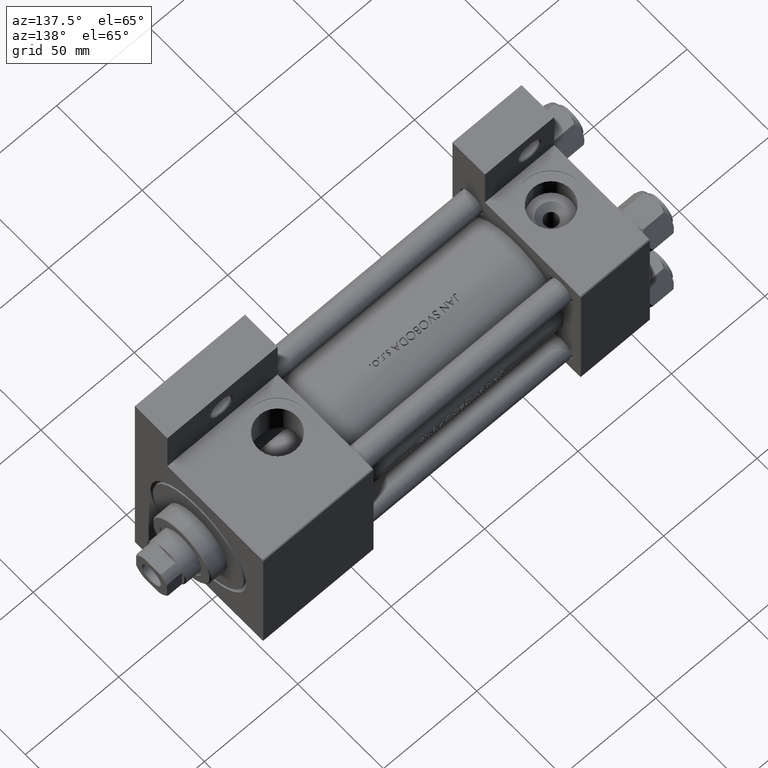
[diagram: clean part render]
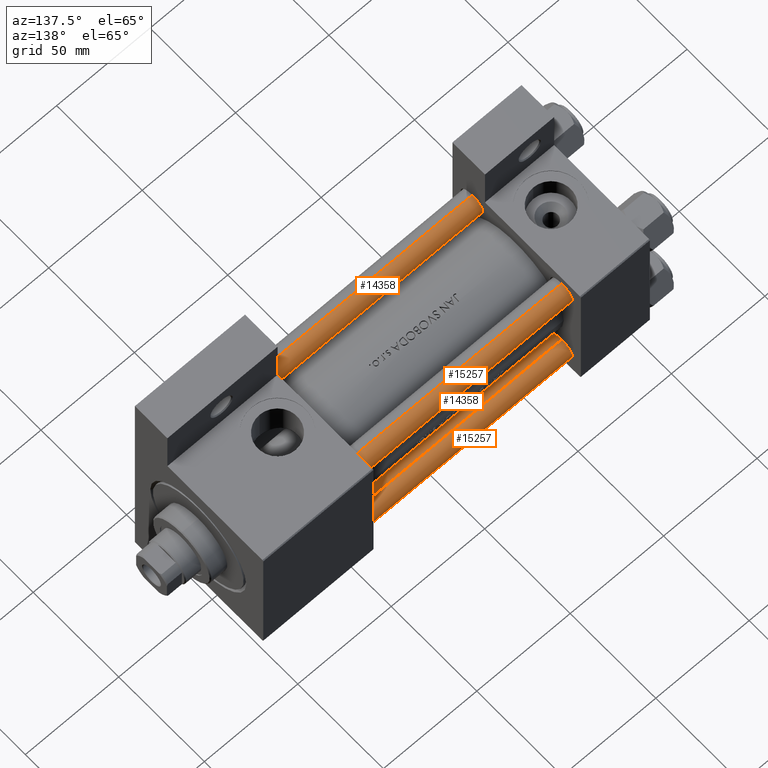
[diagram: same view with one multi-face feature highlighted, each face labeled with its STEP entity id]
A machine part, auxiliary view. The highlighted faces form ONE feature: a constant-radius fillet chain: 4 tangent blend faces with common blend radius 6 mm. The faces share edges in the B-rep.
Their STEP definitions:
[1] entity #15257 (Cylinder):
#157 = ORIENTED_EDGE ( 'NONE', *, *, #37137, .T. ) ;
#1716 = CARTESIAN_POINT ( 'NONE',  ( -6.000000000000000888, 0.000000000000000000, 0.5000000000000281997 ) ) ;
#2989 = CYLINDRICAL_SURFACE ( 'NONE', #7950, 6.000000000000000888 ) ;
#3058 = LINE ( 'NONE', #32703, #32353 ) ;
#4054 = CARTESIAN_POINT ( 'NONE',  ( -6.000000000000000888, 0.000000000000000000, 176.4999999999999716 ) ) ;
#6323 = EDGE_CURVE ( 'NONE', #13039, #16869, #3058, .T. ) ;
#7950 = AXIS2_PLACEMENT_3D ( 'NONE', #41817, #18891, #34100 ) ;
#10630 = CARTESIAN_POINT ( 'NONE',  ( 6.000000000000000888, 7.347880794884120722E-16, 176.4999999999999716 ) ) ;
#13039 = VERTEX_POINT ( 'NONE', #4054 ) ;
#14678 = DIRECTION ( 'NONE',  ( -0.000000000000000000, -0.000000000000000000, 1.000000000000000000 ) ) ;
#14924 = CARTESIAN_POINT ( 'NONE',  ( 0.000000000000000000, 0.000000000000000000, 0.5000000000000281997 ) ) ;
#15257 = ADVANCED_FACE ( 'NONE', ( #48800 ), #2989, .T. ) ;
#16025 = ORIENTED_EDGE ( 'NONE', *, *, #46420, .T. ) ;
#16869 = VERTEX_POINT ( 'NONE', #1716 ) ;
#17174 = AXIS2_PLACEMENT_3D ( 'NONE', #41259, #42236, #26570 ) ;
#18051 = VERTEX_POINT ( 'NONE', #48690 ) ;
#18891 = DIRECTION ( 'NONE',  ( -0.000000000000000000, -0.000000000000000000, -1.000000000000000000 ) ) ;
#22461 = DIRECTION ( 'NONE',  ( -0.000000000000000000, -0.000000000000000000, -1.000000000000000000 ) ) ;
#22553 = CIRCLE ( 'NONE', #47245, 6.000000000000000888 ) ;
#26570 = DIRECTION ( 'NONE',  ( 1.000000000000000000, 0.000000000000000000, 0.000000000000000000 ) ) ;
#28325 = CIRCLE ( 'NONE', #17174, 6.000000000000000888 ) ;
#28451 = ORIENTED_EDGE ( 'NONE', *, *, #6323, .F. ) ;
#30511 = VERTEX_POINT ( 'NONE', #10630 ) ;
#31710 = EDGE_CURVE ( 'NONE', #30511, #18051, #46994, .T. ) ;
#31807 = EDGE_LOOP ( 'NONE', ( #16025, #42505, #157, #28451 ) ) ;
#32353 = VECTOR ( 'NONE', #22461, 1000.000000000000000 ) ;
#32703 = CARTESIAN_POINT ( 'NONE',  ( -6.000000000000000888, 0.000000000000000000, 177.0000000000000000 ) ) ;
#34100 = DIRECTION ( 'NONE',  ( -1.000000000000000000, 0.000000000000000000, 0.000000000000000000 ) ) ;
#36009 = DIRECTION ( 'NONE',  ( -0.000000000000000000, -0.000000000000000000, -1.000000000000000000 ) ) ;
#37137 = EDGE_CURVE ( 'NONE', #18051, #16869, #22553, .T. ) ;
#40484 = CARTESIAN_POINT ( 'NONE',  ( 6.000000000000000888, 7.347880794884120722E-16, 177.0000000000000000 ) ) ;
#41259 = CARTESIAN_POINT ( 'NONE',  ( 0.000000000000000000, 0.000000000000000000, 176.4999999999999716 ) ) ;
#41471 = VECTOR ( 'NONE', #36009, 1000.000000000000000 ) ;
#41575 = DIRECTION ( 'NONE',  ( 1.000000000000000000, 0.000000000000000000, 0.000000000000000000 ) ) ;
#41817 = CARTESIAN_POINT ( 'NONE',  ( 0.000000000000000000, 0.000000000000000000, 177.0000000000000000 ) ) ;
#42236 = DIRECTION ( 'NONE',  ( 0.000000000000000000, 0.000000000000000000, -1.000000000000000000 ) ) ;
#42505 = ORIENTED_EDGE ( 'NONE', *, *, #31710, .T. ) ;
#46420 = EDGE_CURVE ( 'NONE', #13039, #30511, #28325, .T. ) ;
#46994 = LINE ( 'NONE', #40484, #41471 ) ;
#47245 = AXIS2_PLACEMENT_3D ( 'NONE', #14924, #14678, #41575 ) ;
#48690 = CARTESIAN_POINT ( 'NONE',  ( 6.000000000000000888, 7.347880794884120722E-16, 0.5000000000000281997 ) ) ;
#48800 = FACE_OUTER_BOUND ( 'NONE', #31807, .T. ) ;
[2] entity #14358 (Cylinder):
#1400 = DIRECTION ( 'NONE',  ( 0.000000000000000000, 0.000000000000000000, -1.000000000000000000 ) ) ;
#1716 = CARTESIAN_POINT ( 'NONE',  ( -6.000000000000000888, 0.000000000000000000, 0.5000000000000281997 ) ) ;
#2612 = CARTESIAN_POINT ( 'NONE',  ( 0.000000000000000000, 0.000000000000000000, 0.5000000000000281997 ) ) ;
#3058 = LINE ( 'NONE', #32703, #32353 ) ;
#3463 = CARTESIAN_POINT ( 'NONE',  ( 0.000000000000000000, 0.000000000000000000, 177.0000000000000000 ) ) ;
#4054 = CARTESIAN_POINT ( 'NONE',  ( -6.000000000000000888, 0.000000000000000000, 176.4999999999999716 ) ) ;
#5837 = ORIENTED_EDGE ( 'NONE', *, *, #45654, .T. ) ;
#5859 = DIRECTION ( 'NONE',  ( -0.000000000000000000, -0.000000000000000000, 1.000000000000000000 ) ) ;
#6323 = EDGE_CURVE ( 'NONE', #13039, #16869, #3058, .T. ) ;
#6814 = EDGE_LOOP ( 'NONE', ( #13808, #23297, #24288, #5837 ) ) ;
#7694 = DIRECTION ( 'NONE',  ( -0.000000000000000000, -0.000000000000000000, -1.000000000000000000 ) ) ;
#10630 = CARTESIAN_POINT ( 'NONE',  ( 6.000000000000000888, 7.347880794884120722E-16, 176.4999999999999716 ) ) ;
#10992 = EDGE_CURVE ( 'NONE', #30511, #13039, #34856, .T. ) ;
#13039 = VERTEX_POINT ( 'NONE', #4054 ) ;
#13795 = DIRECTION ( 'NONE',  ( 1.000000000000000000, 0.000000000000000000, 0.000000000000000000 ) ) ;
#13808 = ORIENTED_EDGE ( 'NONE', *, *, #31710, .F. ) ;
#14358 = ADVANCED_FACE ( 'NONE', ( #41806 ), #18882, .T. ) ;
#16350 = AXIS2_PLACEMENT_3D ( 'NONE', #2612, #5859, #13795 ) ;
#16869 = VERTEX_POINT ( 'NONE', #1716 ) ;
#18051 = VERTEX_POINT ( 'NONE', #48690 ) ;
#18882 = CYLINDRICAL_SURFACE ( 'NONE', #35741, 6.000000000000000888 ) ;
#19805 = CARTESIAN_POINT ( 'NONE',  ( 0.000000000000000000, 0.000000000000000000, 176.4999999999999716 ) ) ;
#22461 = DIRECTION ( 'NONE',  ( -0.000000000000000000, -0.000000000000000000, -1.000000000000000000 ) ) ;
#23297 = ORIENTED_EDGE ( 'NONE', *, *, #10992, .T. ) ;
#24288 = ORIENTED_EDGE ( 'NONE', *, *, #6323, .T. ) ;
#30511 = VERTEX_POINT ( 'NONE', #10630 ) ;
#31710 = EDGE_CURVE ( 'NONE', #30511, #18051, #46994, .T. ) ;
#32353 = VECTOR ( 'NONE', #22461, 1000.000000000000000 ) ;
#32703 = CARTESIAN_POINT ( 'NONE',  ( -6.000000000000000888, 0.000000000000000000, 177.0000000000000000 ) ) ;
#34856 = CIRCLE ( 'NONE', #40409, 6.000000000000000888 ) ;
#35741 = AXIS2_PLACEMENT_3D ( 'NONE', #3463, #7694, #48789 ) ;
#36009 = DIRECTION ( 'NONE',  ( -0.000000000000000000, -0.000000000000000000, -1.000000000000000000 ) ) ;
#38732 = DIRECTION ( 'NONE',  ( 1.000000000000000000, 0.000000000000000000, 0.000000000000000000 ) ) ;
#39422 = CIRCLE ( 'NONE', #16350, 6.000000000000000888 ) ;
#40409 = AXIS2_PLACEMENT_3D ( 'NONE', #19805, #1400, #38732 ) ;
#40484 = CARTESIAN_POINT ( 'NONE',  ( 6.000000000000000888, 7.347880794884120722E-16, 177.0000000000000000 ) ) ;
#41471 = VECTOR ( 'NONE', #36009, 1000.000000000000000 ) ;
#41806 = FACE_OUTER_BOUND ( 'NONE', #6814, .T. ) ;
#45654 = EDGE_CURVE ( 'NONE', #16869, #18051, #39422, .T. ) ;
#46994 = LINE ( 'NONE', #40484, #41471 ) ;
#48690 = CARTESIAN_POINT ( 'NONE',  ( 6.000000000000000888, 7.347880794884120722E-16, 0.5000000000000281997 ) ) ;
#48789 = DIRECTION ( 'NONE',  ( -1.000000000000000000, 0.000000000000000000, 0.000000000000000000 ) ) ;
[3] entity #15257 (Cylinder):
#157 = ORIENTED_EDGE ( 'NONE', *, *, #37137, .T. ) ;
#1716 = CARTESIAN_POINT ( 'NONE',  ( -6.000000000000000888, 0.000000000000000000, 0.5000000000000281997 ) ) ;
#2989 = CYLINDRICAL_SURFACE ( 'NONE', #7950, 6.000000000000000888 ) ;
#3058 = LINE ( 'NONE', #32703, #32353 ) ;
#4054 = CARTESIAN_POINT ( 'NONE',  ( -6.000000000000000888, 0.000000000000000000, 176.4999999999999716 ) ) ;
#6323 = EDGE_CURVE ( 'NONE', #13039, #16869, #3058, .T. ) ;
#7950 = AXIS2_PLACEMENT_3D ( 'NONE', #41817, #18891, #34100 ) ;
#10630 = CARTESIAN_POINT ( 'NONE',  ( 6.000000000000000888, 7.347880794884120722E-16, 176.4999999999999716 ) ) ;
#13039 = VERTEX_POINT ( 'NONE', #4054 ) ;
#14678 = DIRECTION ( 'NONE',  ( -0.000000000000000000, -0.000000000000000000, 1.000000000000000000 ) ) ;
#14924 = CARTESIAN_POINT ( 'NONE',  ( 0.000000000000000000, 0.000000000000000000, 0.5000000000000281997 ) ) ;
#15257 = ADVANCED_FACE ( 'NONE', ( #48800 ), #2989, .T. ) ;
#16025 = ORIENTED_EDGE ( 'NONE', *, *, #46420, .T. ) ;
#16869 = VERTEX_POINT ( 'NONE', #1716 ) ;
#17174 = AXIS2_PLACEMENT_3D ( 'NONE', #41259, #42236, #26570 ) ;
#18051 = VERTEX_POINT ( 'NONE', #48690 ) ;
#18891 = DIRECTION ( 'NONE',  ( -0.000000000000000000, -0.000000000000000000, -1.000000000000000000 ) ) ;
#22461 = DIRECTION ( 'NONE',  ( -0.000000000000000000, -0.000000000000000000, -1.000000000000000000 ) ) ;
#22553 = CIRCLE ( 'NONE', #47245, 6.000000000000000888 ) ;
#26570 = DIRECTION ( 'NONE',  ( 1.000000000000000000, 0.000000000000000000, 0.000000000000000000 ) ) ;
#28325 = CIRCLE ( 'NONE', #17174, 6.000000000000000888 ) ;
#28451 = ORIENTED_EDGE ( 'NONE', *, *, #6323, .F. ) ;
#30511 = VERTEX_POINT ( 'NONE', #10630 ) ;
#31710 = EDGE_CURVE ( 'NONE', #30511, #18051, #46994, .T. ) ;
#31807 = EDGE_LOOP ( 'NONE', ( #16025, #42505, #157, #28451 ) ) ;
#32353 = VECTOR ( 'NONE', #22461, 1000.000000000000000 ) ;
#32703 = CARTESIAN_POINT ( 'NONE',  ( -6.000000000000000888, 0.000000000000000000, 177.0000000000000000 ) ) ;
#34100 = DIRECTION ( 'NONE',  ( -1.000000000000000000, 0.000000000000000000, 0.000000000000000000 ) ) ;
#36009 = DIRECTION ( 'NONE',  ( -0.000000000000000000, -0.000000000000000000, -1.000000000000000000 ) ) ;
#37137 = EDGE_CURVE ( 'NONE', #18051, #16869, #22553, .T. ) ;
#40484 = CARTESIAN_POINT ( 'NONE',  ( 6.000000000000000888, 7.347880794884120722E-16, 177.0000000000000000 ) ) ;
#41259 = CARTESIAN_POINT ( 'NONE',  ( 0.000000000000000000, 0.000000000000000000, 176.4999999999999716 ) ) ;
#41471 = VECTOR ( 'NONE', #36009, 1000.000000000000000 ) ;
#41575 = DIRECTION ( 'NONE',  ( 1.000000000000000000, 0.000000000000000000, 0.000000000000000000 ) ) ;
#41817 = CARTESIAN_POINT ( 'NONE',  ( 0.000000000000000000, 0.000000000000000000, 177.0000000000000000 ) ) ;
#42236 = DIRECTION ( 'NONE',  ( 0.000000000000000000, 0.000000000000000000, -1.000000000000000000 ) ) ;
#42505 = ORIENTED_EDGE ( 'NONE', *, *, #31710, .T. ) ;
#46420 = EDGE_CURVE ( 'NONE', #13039, #30511, #28325, .T. ) ;
#46994 = LINE ( 'NONE', #40484, #41471 ) ;
#47245 = AXIS2_PLACEMENT_3D ( 'NONE', #14924, #14678, #41575 ) ;
#48690 = CARTESIAN_POINT ( 'NONE',  ( 6.000000000000000888, 7.347880794884120722E-16, 0.5000000000000281997 ) ) ;
#48800 = FACE_OUTER_BOUND ( 'NONE', #31807, .T. ) ;
[4] entity #14358 (Cylinder):
#1400 = DIRECTION ( 'NONE',  ( 0.000000000000000000, 0.000000000000000000, -1.000000000000000000 ) ) ;
#1716 = CARTESIAN_POINT ( 'NONE',  ( -6.000000000000000888, 0.000000000000000000, 0.5000000000000281997 ) ) ;
#2612 = CARTESIAN_POINT ( 'NONE',  ( 0.000000000000000000, 0.000000000000000000, 0.5000000000000281997 ) ) ;
#3058 = LINE ( 'NONE', #32703, #32353 ) ;
#3463 = CARTESIAN_POINT ( 'NONE',  ( 0.000000000000000000, 0.000000000000000000, 177.0000000000000000 ) ) ;
#4054 = CARTESIAN_POINT ( 'NONE',  ( -6.000000000000000888, 0.000000000000000000, 176.4999999999999716 ) ) ;
#5837 = ORIENTED_EDGE ( 'NONE', *, *, #45654, .T. ) ;
#5859 = DIRECTION ( 'NONE',  ( -0.000000000000000000, -0.000000000000000000, 1.000000000000000000 ) ) ;
#6323 = EDGE_CURVE ( 'NONE', #13039, #16869, #3058, .T. ) ;
#6814 = EDGE_LOOP ( 'NONE', ( #13808, #23297, #24288, #5837 ) ) ;
#7694 = DIRECTION ( 'NONE',  ( -0.000000000000000000, -0.000000000000000000, -1.000000000000000000 ) ) ;
#10630 = CARTESIAN_POINT ( 'NONE',  ( 6.000000000000000888, 7.347880794884120722E-16, 176.4999999999999716 ) ) ;
#10992 = EDGE_CURVE ( 'NONE', #30511, #13039, #34856, .T. ) ;
#13039 = VERTEX_POINT ( 'NONE', #4054 ) ;
#13795 = DIRECTION ( 'NONE',  ( 1.000000000000000000, 0.000000000000000000, 0.000000000000000000 ) ) ;
#13808 = ORIENTED_EDGE ( 'NONE', *, *, #31710, .F. ) ;
#14358 = ADVANCED_FACE ( 'NONE', ( #41806 ), #18882, .T. ) ;
#16350 = AXIS2_PLACEMENT_3D ( 'NONE', #2612, #5859, #13795 ) ;
#16869 = VERTEX_POINT ( 'NONE', #1716 ) ;
#18051 = VERTEX_POINT ( 'NONE', #48690 ) ;
#18882 = CYLINDRICAL_SURFACE ( 'NONE', #35741, 6.000000000000000888 ) ;
#19805 = CARTESIAN_POINT ( 'NONE',  ( 0.000000000000000000, 0.000000000000000000, 176.4999999999999716 ) ) ;
#22461 = DIRECTION ( 'NONE',  ( -0.000000000000000000, -0.000000000000000000, -1.000000000000000000 ) ) ;
#23297 = ORIENTED_EDGE ( 'NONE', *, *, #10992, .T. ) ;
#24288 = ORIENTED_EDGE ( 'NONE', *, *, #6323, .T. ) ;
#30511 = VERTEX_POINT ( 'NONE', #10630 ) ;
#31710 = EDGE_CURVE ( 'NONE', #30511, #18051, #46994, .T. ) ;
#32353 = VECTOR ( 'NONE', #22461, 1000.000000000000000 ) ;
#32703 = CARTESIAN_POINT ( 'NONE',  ( -6.000000000000000888, 0.000000000000000000, 177.0000000000000000 ) ) ;
#34856 = CIRCLE ( 'NONE', #40409, 6.000000000000000888 ) ;
#35741 = AXIS2_PLACEMENT_3D ( 'NONE', #3463, #7694, #48789 ) ;
#36009 = DIRECTION ( 'NONE',  ( -0.000000000000000000, -0.000000000000000000, -1.000000000000000000 ) ) ;
#38732 = DIRECTION ( 'NONE',  ( 1.000000000000000000, 0.000000000000000000, 0.000000000000000000 ) ) ;
#39422 = CIRCLE ( 'NONE', #16350, 6.000000000000000888 ) ;
#40409 = AXIS2_PLACEMENT_3D ( 'NONE', #19805, #1400, #38732 ) ;
#40484 = CARTESIAN_POINT ( 'NONE',  ( 6.000000000000000888, 7.347880794884120722E-16, 177.0000000000000000 ) ) ;
#41471 = VECTOR ( 'NONE', #36009, 1000.000000000000000 ) ;
#41806 = FACE_OUTER_BOUND ( 'NONE', #6814, .T. ) ;
#45654 = EDGE_CURVE ( 'NONE', #16869, #18051, #39422, .T. ) ;
#46994 = LINE ( 'NONE', #40484, #41471 ) ;
#48690 = CARTESIAN_POINT ( 'NONE',  ( 6.000000000000000888, 7.347880794884120722E-16, 0.5000000000000281997 ) ) ;
#48789 = DIRECTION ( 'NONE',  ( -1.000000000000000000, 0.000000000000000000, 0.000000000000000000 ) ) ;